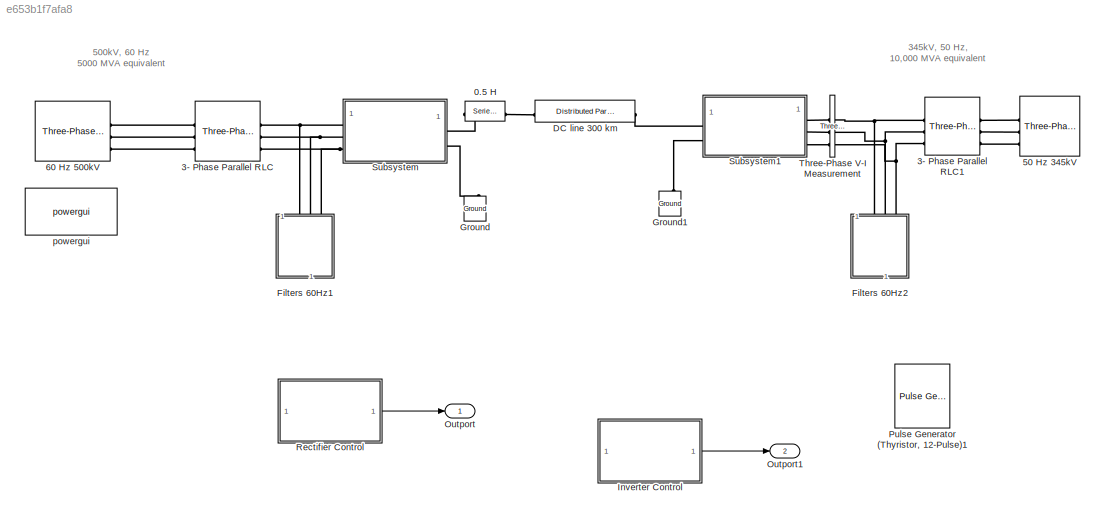
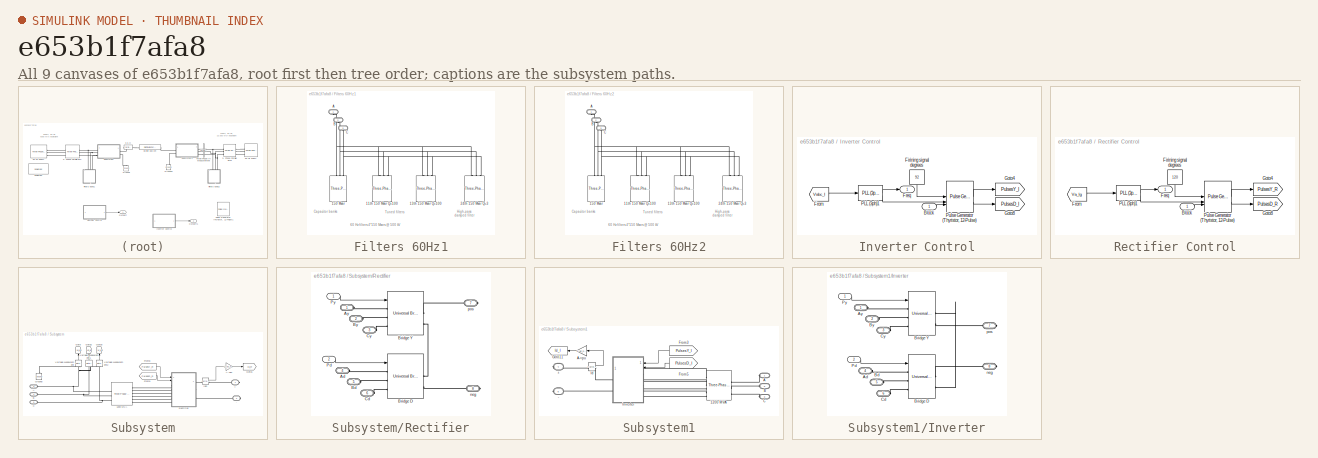
[diagram: thumbnail index - all 9 canvases of the model, root first then tree order]
MODEL slx_e653b1f7afa8
KIND model
CONFIG AbsTol = auto
CONFIG EnableMultiTasking = off
CONFIG FixedStep = auto
CONFIG MaxStep = auto
CONFIG MinStep = auto
CONFIG RelTol = 1e-3
CONFIG SampleTimeConstraint = Unconstrained
CONFIG SolverName = VariableStepAuto
CONFIG StartTime = 0.0
CONFIG StopTime = 10.0
BLOCK [Reference]  50 Hz 345kV    REF=spsThreePhaseSourceLib/Three-Phase Source
  SourceBlock = spsThreePhaseSourceLib/Three-Phase Source
  SourceType = Three-Phase Source
BLOCK [Reference]  60 Hz 500kV  REF=spsThreePhaseSourceLib/Three-Phase Source
  SourceBlock = spsThreePhaseSourceLib/Three-Phase Source
  SourceType = Three-Phase Source
BLOCK [Reference] 0.5 H  REF=spsSeriesRLCBranchLib/Series RLC Branch
  AttributesFormatString = \n
  SourceBlock = spsSeriesRLCBranchLib/Series RLC Branch
  SourceType = Series RLC Branch
BLOCK [Reference] 3- Phase Parallel RLC  REF=spsThreePhaseParallelRLCBranchLib/Three-Phase
Parallel RLC Branch
  AttributesFormatString = \n
  SourceBlock = spsThreePhaseParallelRLCBranchLib/Three-Phase\nParallel RLC Branch
  SourceType = Three-Phase Parallel RLC Branch
BLOCK [Reference] 3- Phase Parallel RLC1  REF=spsThreePhaseParallelRLCBranchLib/Three-Phase
Parallel RLC Branch
  AttributesFormatString = \n
  NameLocation = top
  SourceBlock = spsThreePhaseParallelRLCBranchLib/Three-Phase\nParallel RLC Branch
  SourceType = Three-Phase Parallel RLC Branch
BLOCK [Reference] DC line 300 km  REF=spsDistributedParametersLineLib/Distributed Parameters Line
  AttributesFormatString = \n
  NameLocation = top
  SourceBlock = spsDistributedParametersLineLib/Distributed Parameters Line
  SourceType = Distributed Parameters Line
BLOCK [SubSystem] Filters 60Hz1
  NameLocation = left
BLOCK [Reference] Filters 60Hz1/11th 150 Mvar Q=100  REF=spsThreePhaseHarmonicFilterLib/Three-Phase
Harmonic Filter
  AttributesFormatString = \n
  NameLocation = left
  SourceBlock = spsThreePhaseHarmonicFilterLib/Three-Phase\nHarmonic Filter
  SourceType = Three-Phase Harmonic Filter
BLOCK [Reference] Filters 60Hz1/13th 150 Mvar Q=100   REF=spsThreePhaseHarmonicFilterLib/Three-Phase
Harmonic Filter
  AttributesFormatString = \n
  NameLocation = left
  SourceBlock = spsThreePhaseHarmonicFilterLib/Three-Phase\nHarmonic Filter
  SourceType = Three-Phase Harmonic Filter
BLOCK [Reference] Filters 60Hz1/150 Mvar  REF=spsThreePhaseSeriesRLCLoadLib/Three-Phase
Series RLC Load
  AttributesFormatString = \n
  NameLocation = left
  SourceBlock = spsThreePhaseSeriesRLCLoadLib/Three-Phase\nSeries RLC Load
  SourceType = Three-Phase Series RLC Load
BLOCK [Reference] Filters 60Hz1/24th 150 Mvar Q=3  REF=spsThreePhaseHarmonicFilterLib/Three-Phase
Harmonic Filter
  AttributesFormatString = \n
  NameLocation = left
  SourceBlock = spsThreePhaseHarmonicFilterLib/Three-Phase\nHarmonic Filter
  SourceType = Three-Phase Harmonic Filter
BLOCK [PMIOPort] Filters 60Hz1/A
  NameLocation = left
  Side = Left
BLOCK [PMIOPort] Filters 60Hz1/B
  NameLocation = left
  Port = 2
  Side = Left
BLOCK [PMIOPort] Filters 60Hz1/C
  NameLocation = left
  Port = 3
  Side = Left
BLOCK [SubSystem] Filters 60Hz2
  NameLocation = left
BLOCK [Reference] Filters 60Hz2/11th 150 Mvar Q=100  REF=spsThreePhaseHarmonicFilterLib/Three-Phase
Harmonic Filter
  AttributesFormatString = \n
  NameLocation = left
  SourceBlock = spsThreePhaseHarmonicFilterLib/Three-Phase\nHarmonic Filter
  SourceType = Three-Phase Harmonic Filter
BLOCK [Reference] Filters 60Hz2/13th 150 Mvar Q=100   REF=spsThreePhaseHarmonicFilterLib/Three-Phase
Harmonic Filter
  AttributesFormatString = \n
  NameLocation = left
  SourceBlock = spsThreePhaseHarmonicFilterLib/Three-Phase\nHarmonic Filter
  SourceType = Three-Phase Harmonic Filter
BLOCK [Reference] Filters 60Hz2/150 Mvar  REF=spsThreePhaseSeriesRLCLoadLib/Three-Phase
Series RLC Load
  AttributesFormatString = \n
  NameLocation = left
  SourceBlock = spsThreePhaseSeriesRLCLoadLib/Three-Phase\nSeries RLC Load
  SourceType = Three-Phase Series RLC Load
BLOCK [Reference] Filters 60Hz2/24th 150 Mvar Q=3  REF=spsThreePhaseHarmonicFilterLib/Three-Phase
Harmonic Filter
  AttributesFormatString = \n
  NameLocation = left
  SourceBlock = spsThreePhaseHarmonicFilterLib/Three-Phase\nHarmonic Filter
  SourceType = Three-Phase Harmonic Filter
BLOCK [PMIOPort] Filters 60Hz2/A
  NameLocation = left
  Side = Left
BLOCK [PMIOPort] Filters 60Hz2/B
  NameLocation = left
  Port = 2
  Side = Left
BLOCK [PMIOPort] Filters 60Hz2/C
  NameLocation = left
  Port = 3
  Side = Left
BLOCK [Reference] Ground  REF=spsGroundLib/Ground
  LibrarySourceBlock = sps_lib/Utilities/Ground
  NameLocation = right
  SourceBlock = spsGroundLib/Ground
  SourceType = Ground
BLOCK [Reference] Ground1  REF=spsGroundLib/Ground
  LibrarySourceBlock = sps_lib/Utilities/Ground
  NameLocation = right
  SourceBlock = spsGroundLib/Ground
  SourceType = Ground
BLOCK [SubSystem] Inverter Control
BLOCK [Inport] Inverter Control/Block
BLOCK [Constant] Inverter Control/Firining signal degrees
  NameLocation = left
  Value = 92
BLOCK [Outport] Inverter Control/Freq
BLOCK [From] Inverter Control/From
  GotoTag = Vabc_I
  TagVisibility = global
BLOCK [Goto] Inverter Control/Goto4
  GotoTag = PulsesY_I
  NameLocation = top
  TagVisibility = global
BLOCK [Goto] Inverter Control/Goto8
  GotoTag = PulsesD_I
  NameLocation = top
  TagVisibility = global
BLOCK [Reference] Inverter Control/PLL (3ph)1  REF=spsPLL3phLib/PLL
(3ph)
  SourceBlock = spsPLL3phLib/PLL\n(3ph)
  SourceType = PLL (3ph)
BLOCK [Reference] Inverter Control/Pulse Generator (Thyristor, 12-Pulse)  REF=spsPulseGeneratorThyristor12PulseLib/Pulse Generator
(Thyristor, 12-Pulse)
  LibrarySourceBlock = sps_lib/Power Electronics/Power Electronics Control/Pulse Generator\n(Thyristor, 12-Pulse)
  SourceBlock = spsPulseGeneratorThyristor12PulseLib/Pulse Generator\n(Thyristor, 12-Pulse)
  SourceType = Pulse Generator (Thyristor)
BLOCK [Outport] Outport
BLOCK [Outport] Outport1
  Port = 2
BLOCK [Reference] Pulse Generator (Thyristor, 12-Pulse)1  REF=spsPulseGeneratorThyristor12PulseLib/Pulse Generator
(Thyristor, 12-Pulse)
  LibrarySourceBlock = sps_lib/Power Electronics/Power Electronics Control/Pulse Generator\n(Thyristor, 12-Pulse)
  SourceBlock = spsPulseGeneratorThyristor12PulseLib/Pulse Generator\n(Thyristor, 12-Pulse)
  SourceType = Pulse Generator (Thyristor)
BLOCK [SubSystem] Rectifier Control
BLOCK [Inport] Rectifier Control/Block
BLOCK [Constant] Rectifier Control/Firining signal degrees
  NameLocation = left
  Value = 120
BLOCK [Outport] Rectifier Control/Freq
BLOCK [From] Rectifier Control/From
  GotoTag = Va_lg
  TagVisibility = global
BLOCK [Goto] Rectifier Control/Goto4
  GotoTag = PulsesY_R
  NameLocation = top
  TagVisibility = global
BLOCK [Goto] Rectifier Control/Goto8
  GotoTag = PulsesD_R
  NameLocation = top
  TagVisibility = global
BLOCK [Reference] Rectifier Control/PLL (3ph)1  REF=spsPLL3phLib/PLL
(3ph)
  SourceBlock = spsPLL3phLib/PLL\n(3ph)
  SourceType = PLL (3ph)
BLOCK [Reference] Rectifier Control/Pulse Generator (Thyristor, 12-Pulse)  REF=spsPulseGeneratorThyristor12PulseLib/Pulse Generator
(Thyristor, 12-Pulse)
  LibrarySourceBlock = sps_lib/Power Electronics/Power Electronics Control/Pulse Generator\n(Thyristor, 12-Pulse)
  SourceBlock = spsPulseGeneratorThyristor12PulseLib/Pulse Generator\n(Thyristor, 12-Pulse)
  SourceType = Pulse Generator (Thyristor)
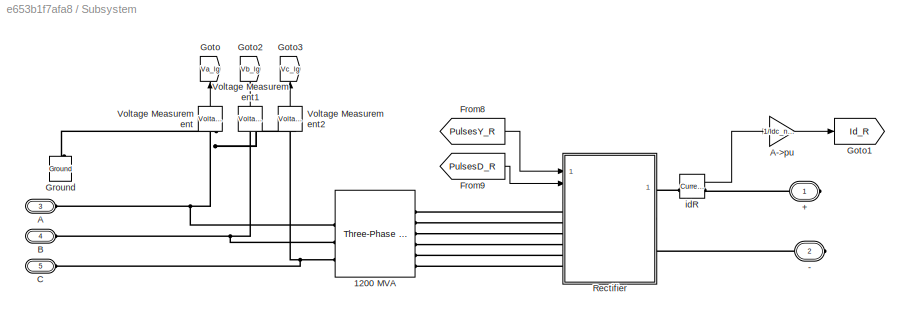
BLOCK [SubSystem] Subsystem
BLOCK [PMIOPort] Subsystem/+ 
  Side = Right
BLOCK [PMIOPort] Subsystem/-
  Port = 2
  Side = Right
BLOCK [Reference] Subsystem/1200 MVA  REF=spsThreePhaseTransformerThreeWindingsLib/Three-Phase
Transformer
(Three Windings)
  AttributesFormatString = \n
  SourceBlock = spsThreePhaseTransformerThreeWindingsLib/Three-Phase\nTransformer\n(Three Windings)
  SourceType = Three-Phase Transformer (Three Windings)
BLOCK [PMIOPort] Subsystem/A
  Port = 3
  Side = Left
BLOCK [Gain] Subsystem/A->pu
  Gain = 1/Idc_nom
  OutDataTypeStr = Inherit: Same as input
  ParamDataTypeStr = Inherit: Same as input
  SaturateOnIntegerOverflow = on
BLOCK [PMIOPort] Subsystem/B
  Port = 4
  Side = Left
BLOCK [PMIOPort] Subsystem/C
  Port = 5
  Side = Left
BLOCK [From] Subsystem/From8
  CloseFcn = tagdialog Close
  GotoTag = PulsesY_R
  NameLocation = top
  TagVisibility = global
BLOCK [From] Subsystem/From9
  CloseFcn = tagdialog Close
  GotoTag = PulsesD_R
  NameLocation = top
  TagVisibility = global
BLOCK [Goto] Subsystem/Goto
  GotoTag = Va_lg
  NameLocation = right
  TagVisibility = global
BLOCK [Goto] Subsystem/Goto1
  GotoTag = Id_R
  NameLocation = top
  TagVisibility = global
BLOCK [Goto] Subsystem/Goto2
  GotoTag = Vb_lg
  NameLocation = right
BLOCK [Goto] Subsystem/Goto3
  GotoTag = Vc_lg
  NameLocation = right
BLOCK [Reference] Subsystem/Ground  REF=spsGroundLib/Ground
  LibrarySourceBlock = sps_lib/Utilities/Ground
  NameLocation = right
  SourceBlock = spsGroundLib/Ground
  SourceType = Ground
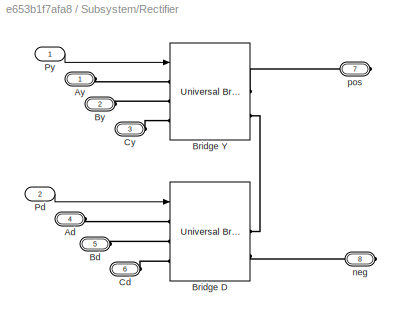
BLOCK [SubSystem] Subsystem/Rectifier
BLOCK [PMIOPort] Subsystem/Rectifier/Ad
  Port = 4
  Side = Left
BLOCK [PMIOPort] Subsystem/Rectifier/Ay
  Side = Left
BLOCK [PMIOPort] Subsystem/Rectifier/Bd
  Port = 5
  Side = Left
BLOCK [Reference] Subsystem/Rectifier/Bridge D  REF=spsUniversalBridgeLib/Universal Bridge
  AttributesFormatString = \n
  SourceBlock = spsUniversalBridgeLib/Universal Bridge
  SourceType = Universal Bridge
BLOCK [Reference] Subsystem/Rectifier/Bridge Y  REF=spsUniversalBridgeLib/Universal Bridge
  AttributesFormatString = \n
  SourceBlock = spsUniversalBridgeLib/Universal Bridge
  SourceType = Universal Bridge
BLOCK [PMIOPort] Subsystem/Rectifier/By
  Port = 2
  Side = Left
BLOCK [PMIOPort] Subsystem/Rectifier/Cd
  Port = 6
  Side = Left
BLOCK [PMIOPort] Subsystem/Rectifier/Cy
  Port = 3
  Side = Left
BLOCK [Inport] Subsystem/Rectifier/Pd
  Port = 2
BLOCK [Inport] Subsystem/Rectifier/Py
BLOCK [PMIOPort] Subsystem/Rectifier/neg
  Port = 8
  Side = Right
BLOCK [PMIOPort] Subsystem/Rectifier/pos
  Port = 7
  Side = Right
BLOCK [Reference] Subsystem/Voltage Measurement  REF=spsVoltageMeasurementLib/Voltage Measurement
  LibrarySourceBlock = sps_lib/Sensors and Measurements/Voltage Measurement
  NameLocation = right
  SourceBlock = spsVoltageMeasurementLib/Voltage Measurement
  SourceType = Voltage Measurement
  UserDataPersistent = on
BLOCK [Reference] Subsystem/Voltage Measurement1  REF=spsVoltageMeasurementLib/Voltage Measurement
  LibrarySourceBlock = sps_lib/Sensors and Measurements/Voltage Measurement
  NameLocation = right
  SourceBlock = spsVoltageMeasurementLib/Voltage Measurement
  SourceType = Voltage Measurement
  UserDataPersistent = on
BLOCK [Reference] Subsystem/Voltage Measurement2  REF=spsVoltageMeasurementLib/Voltage Measurement
  LibrarySourceBlock = sps_lib/Sensors and Measurements/Voltage Measurement
  NameLocation = right
  SourceBlock = spsVoltageMeasurementLib/Voltage Measurement
  SourceType = Voltage Measurement
  UserDataPersistent = on
BLOCK [Reference] Subsystem/idR  REF=spsCurrentMeasurementLib/Current Measurement
  AttributesFormatString = \n
  SourceBlock = spsCurrentMeasurementLib/Current Measurement
  SourceType = Current Measurement
  Tag = PoWeRsYsTeMmEaSuReMeNt
BLOCK [SubSystem] Subsystem1
BLOCK [PMIOPort] Subsystem1/+
  Port = 4
  Side = Right
BLOCK [PMIOPort] Subsystem1/-
  Port = 5
  Side = Right
BLOCK [Reference] Subsystem1/1200 MVA  REF=spsThreePhaseTransformerThreeWindingsLib/Three-Phase
Transformer
(Three Windings)
  AttributesFormatString = \n
  SourceBlock = spsThreePhaseTransformerThreeWindingsLib/Three-Phase\nTransformer\n(Three Windings)
  SourceType = Three-Phase Transformer (Three Windings)
BLOCK [PMIOPort] Subsystem1/A
  Side = Left
BLOCK [Gain] Subsystem1/A->pu
  Gain = 1/Idc_nom
  OutDataTypeStr = Inherit: Same as input
  ParamDataTypeStr = Inherit: Same as input
  SaturateOnIntegerOverflow = on
BLOCK [PMIOPort] Subsystem1/B
  Port = 2
  Side = Left
BLOCK [PMIOPort] Subsystem1/C
  Port = 3
  Side = Left
BLOCK [From] Subsystem1/From3
  CloseFcn = tagdialog Close
  GotoTag = PulsesY_I
  NameLocation = top
BLOCK [From] Subsystem1/From5
  CloseFcn = tagdialog Close
  GotoTag = PulsesD_I
  NameLocation = top
BLOCK [Goto] Subsystem1/Goto11
  GotoTag = Id_I
  TagVisibility = global
BLOCK [Reference] Subsystem1/Id  REF=spsCurrentMeasurementLib/Current Measurement
  AttributesFormatString = \n
  SourceBlock = spsCurrentMeasurementLib/Current Measurement
  SourceType = Current Measurement
  Tag = PoWeRsYsTeMmEaSuReMeNt
BLOCK [SubSystem] Subsystem1/Inverter
BLOCK [PMIOPort] Subsystem1/Inverter/Ad
  Port = 4
  Side = Left
BLOCK [PMIOPort] Subsystem1/Inverter/Ay
  Side = Left
BLOCK [PMIOPort] Subsystem1/Inverter/Bd
  Port = 5
  Side = Left
BLOCK [Reference] Subsystem1/Inverter/Bridge D  REF=spsUniversalBridgeLib/Universal Bridge
  AttributesFormatString = \n
  SourceBlock = spsUniversalBridgeLib/Universal Bridge
  SourceType = Universal Bridge
BLOCK [Reference] Subsystem1/Inverter/Bridge Y  REF=spsUniversalBridgeLib/Universal Bridge
  AttributesFormatString = \n
  SourceBlock = spsUniversalBridgeLib/Universal Bridge
  SourceType = Universal Bridge
BLOCK [PMIOPort] Subsystem1/Inverter/By
  Port = 2
  Side = Left
BLOCK [PMIOPort] Subsystem1/Inverter/Cd
  Port = 6
  Side = Left
BLOCK [PMIOPort] Subsystem1/Inverter/Cy
  Port = 3
  Side = Left
BLOCK [Inport] Subsystem1/Inverter/Pd
  Port = 2
BLOCK [Inport] Subsystem1/Inverter/Py
BLOCK [PMIOPort] Subsystem1/Inverter/neg
  Port = 8
  Side = Right
BLOCK [PMIOPort] Subsystem1/Inverter/pos
  Port = 7
  Side = Right
BLOCK [Reference] Three-Phase V-I Measurement  REF=spsThreePhaseVIMeasurementLib/Three-Phase
V-I Measurement
  LibrarySourceBlock = sps_lib/Sensors and Measurements/Three-Phase\nV-I Measurement
  SourceBlock = spsThreePhaseVIMeasurementLib/Three-Phase\nV-I Measurement
  SourceType = Three-Phase VI Measurement
BLOCK [Reference] powergui  REF=spspowerguiLib/powergui
  Priority = 2
  SourceBlock = spspowerguiLib/powergui
  SourceType = PSB option menu block
ANNOTATION (root): 345kV, 50 Hz, 10,000 MVA equivalent
ANNOTATION (root): 500kV, 60 Hz 5000 MVA equivalent
ANNOTATION Filters 60Hz1: 60 Hz filters 4*150 Mvars @ 500 kV
ANNOTATION Filters 60Hz1: Capacitor banks
ANNOTATION Filters 60Hz1: High-pass damped filter
ANNOTATION Filters 60Hz1: Tuned filters
ANNOTATION Filters 60Hz2: 60 Hz filters 4*150 Mvars @ 500 kV
ANNOTATION Filters 60Hz2: Capacitor banks
ANNOTATION Filters 60Hz2: High-pass damped filter
ANNOTATION Filters 60Hz2: Tuned filters
LINE Inverter Control/Block:1 -> Inverter Control/Pulse Generator (Thyristor, 12-Pulse):3
LINE Inverter Control/Firining signal degrees:1 -> Inverter Control/Pulse Generator (Thyristor, 12-Pulse):1
LINE Inverter Control/From:1 -> Inverter Control/PLL (3ph)1:1
LINE Inverter Control/PLL (3ph)1:1 -> Inverter Control/Freq:1
LINE Inverter Control/PLL (3ph)1:2 -> Inverter Control/Pulse Generator (Thyristor, 12-Pulse):2
LINE Inverter Control/Pulse Generator (Thyristor, 12-Pulse):1 -> Inverter Control/Goto4:1
LINE Inverter Control/Pulse Generator (Thyristor, 12-Pulse):2 -> Inverter Control/Goto8:1
LINE Inverter Control:1 -> Outport1:1
LINE Rectifier Control/Block:1 -> Rectifier Control/Pulse Generator (Thyristor, 12-Pulse):3
LINE Rectifier Control/Firining signal degrees:1 -> Rectifier Control/Pulse Generator (Thyristor, 12-Pulse):1
LINE Rectifier Control/From:1 -> Rectifier Control/PLL (3ph)1:1
LINE Rectifier Control/PLL (3ph)1:1 -> Rectifier Control/Freq:1
LINE Rectifier Control/PLL (3ph)1:2 -> Rectifier Control/Pulse Generator (Thyristor, 12-Pulse):2
LINE Rectifier Control/Pulse Generator (Thyristor, 12-Pulse):1 -> Rectifier Control/Goto4:1
LINE Rectifier Control/Pulse Generator (Thyristor, 12-Pulse):2 -> Rectifier Control/Goto8:1
LINE Rectifier Control:1 -> Outport:1
LINE Subsystem/A->pu:1 -> Subsystem/Goto1:1
LINE Subsystem/From8:1 -> Subsystem/Rectifier:1
LINE Subsystem/From9:1 -> Subsystem/Rectifier:2
LINE Subsystem/Rectifier/Pd:1 -> Subsystem/Rectifier/Bridge D:1
LINE Subsystem/Rectifier/Py:1 -> Subsystem/Rectifier/Bridge Y:1
LINE Subsystem/Voltage Measurement1:1 -> Subsystem/Goto2:1
LINE Subsystem/Voltage Measurement2:1 -> Subsystem/Goto3:1
LINE Subsystem/Voltage Measurement:1 -> Subsystem/Goto:1
LINE Subsystem/idR:1 -> Subsystem/A->pu:1
LINE Subsystem1/A->pu:1 -> Subsystem1/Goto11:1
LINE Subsystem1/From3:1 -> Subsystem1/Inverter:1
LINE Subsystem1/From5:1 -> Subsystem1/Inverter:2
LINE Subsystem1/Id:1 -> Subsystem1/A->pu:1
LINE Subsystem1/Inverter/Pd:1 -> Subsystem1/Inverter/Bridge D:1
LINE Subsystem1/Inverter/Py:1 -> Subsystem1/Inverter/Bridge Y:1
PLINE  50 Hz 345kV  :RConn1 -- 3- Phase Parallel RLC1:LConn1
PLINE  50 Hz 345kV  :RConn2 -- 3- Phase Parallel RLC1:LConn2
PLINE  50 Hz 345kV  :RConn3 -- 3- Phase Parallel RLC1:LConn3
PLINE  60 Hz 500kV:RConn1 -- 3- Phase Parallel RLC:LConn1
PLINE  60 Hz 500kV:RConn2 -- 3- Phase Parallel RLC:LConn2
PLINE  60 Hz 500kV:RConn3 -- 3- Phase Parallel RLC:LConn3
PLINE 0.5 H:LConn1 -- Subsystem:RConn1
PLINE 0.5 H:RConn1 -- DC line 300 km:LConn1
PNET net1: 3- Phase Parallel RLC1:RConn1 -- Filters 60Hz2:LConn1 -- Three-Phase V-I Measurement:RConn1
PNET net2: 3- Phase Parallel RLC1:RConn2 -- Filters 60Hz2:LConn2 -- Three-Phase V-I Measurement:RConn2
PNET net3: 3- Phase Parallel RLC1:RConn3 -- Filters 60Hz2:LConn3 -- Three-Phase V-I Measurement:RConn3
PNET net4: 3- Phase Parallel RLC:RConn1 -- Filters 60Hz1:LConn1 -- Subsystem:LConn1
PNET net5: 3- Phase Parallel RLC:RConn2 -- Filters 60Hz1:LConn2 -- Subsystem:LConn2
PNET net6: 3- Phase Parallel RLC:RConn3 -- Filters 60Hz1:LConn3 -- Subsystem:LConn3
PLINE DC line 300 km:RConn1 -- Subsystem1:RConn1
PNET net7: Filters 60Hz1/11th 150 Mvar Q=100:LConn1 -- Filters 60Hz1/13th 150 Mvar Q=100 :LConn1 -- Filters 60Hz1/150 Mvar:LConn1 -- Filters 60Hz1/24th 150 Mvar Q=3:LConn1 -- Filters 60Hz1/A:RConn1
PNET net8: Filters 60Hz1/11th 150 Mvar Q=100:LConn2 -- Filters 60Hz1/13th 150 Mvar Q=100 :LConn2 -- Filters 60Hz1/150 Mvar:LConn2 -- Filters 60Hz1/24th 150 Mvar Q=3:LConn2 -- Filters 60Hz1/B:RConn1
PNET net9: Filters 60Hz1/11th 150 Mvar Q=100:LConn3 -- Filters 60Hz1/13th 150 Mvar Q=100 :LConn3 -- Filters 60Hz1/150 Mvar:LConn3 -- Filters 60Hz1/24th 150 Mvar Q=3:LConn3 -- Filters 60Hz1/C:RConn1
PNET net10: Filters 60Hz2/11th 150 Mvar Q=100:LConn1 -- Filters 60Hz2/13th 150 Mvar Q=100 :LConn1 -- Filters 60Hz2/150 Mvar:LConn1 -- Filters 60Hz2/24th 150 Mvar Q=3:LConn1 -- Filters 60Hz2/A:RConn1
PNET net11: Filters 60Hz2/11th 150 Mvar Q=100:LConn2 -- Filters 60Hz2/13th 150 Mvar Q=100 :LConn2 -- Filters 60Hz2/150 Mvar:LConn2 -- Filters 60Hz2/24th 150 Mvar Q=3:LConn2 -- Filters 60Hz2/B:RConn1
PNET net12: Filters 60Hz2/11th 150 Mvar Q=100:LConn3 -- Filters 60Hz2/13th 150 Mvar Q=100 :LConn3 -- Filters 60Hz2/150 Mvar:LConn3 -- Filters 60Hz2/24th 150 Mvar Q=3:LConn3 -- Filters 60Hz2/C:RConn1
PLINE Ground1:LConn1 -- Subsystem1:RConn2
PLINE Ground:LConn1 -- Subsystem:RConn2
PLINE Subsystem/+ :RConn1 -- Subsystem/idR:RConn1
PLINE Subsystem/-:RConn1 -- Subsystem/Rectifier:RConn2
PNET net13: Subsystem/1200 MVA:LConn1 -- Subsystem/A:RConn1 -- Subsystem/Voltage Measurement:LConn1
PNET net14: Subsystem/1200 MVA:LConn2 -- Subsystem/B:RConn1 -- Subsystem/Voltage Measurement1:LConn1
PNET net15: Subsystem/1200 MVA:LConn3 -- Subsystem/C:RConn1 -- Subsystem/Voltage Measurement2:LConn1
PLINE Subsystem/1200 MVA:RConn1 -- Subsystem/Rectifier:LConn1
PLINE Subsystem/1200 MVA:RConn2 -- Subsystem/Rectifier:LConn2
PLINE Subsystem/1200 MVA:RConn3 -- Subsystem/Rectifier:LConn3
PLINE Subsystem/1200 MVA:RConn4 -- Subsystem/Rectifier:LConn4
PLINE Subsystem/1200 MVA:RConn5 -- Subsystem/Rectifier:LConn5
PLINE Subsystem/1200 MVA:RConn6 -- Subsystem/Rectifier:LConn6
PNET net16: Subsystem/Ground:LConn1 -- Subsystem/Voltage Measurement1:LConn2 -- Subsystem/Voltage Measurement2:LConn2 -- Subsystem/Voltage Measurement:LConn2
PLINE Subsystem/Rectifier/Ad:RConn1 -- Subsystem/Rectifier/Bridge D:LConn1
PLINE Subsystem/Rectifier/Ay:RConn1 -- Subsystem/Rectifier/Bridge Y:LConn1
PLINE Subsystem/Rectifier/Bd:RConn1 -- Subsystem/Rectifier/Bridge D:LConn2
PLINE Subsystem/Rectifier/Bridge D:LConn3 -- Subsystem/Rectifier/Cd:RConn1
PLINE Subsystem/Rectifier/Bridge D:RConn1 -- Subsystem/Rectifier/Bridge Y:RConn2
PLINE Subsystem/Rectifier/Bridge D:RConn2 -- Subsystem/Rectifier/neg:RConn1
PLINE Subsystem/Rectifier/Bridge Y:LConn2 -- Subsystem/Rectifier/By:RConn1
PLINE Subsystem/Rectifier/Bridge Y:LConn3 -- Subsystem/Rectifier/Cy:RConn1
PLINE Subsystem/Rectifier/Bridge Y:RConn1 -- Subsystem/Rectifier/pos:RConn1
PLINE Subsystem/Rectifier:RConn1 -- Subsystem/idR:LConn1
PLINE Subsystem1/+:RConn1 -- Subsystem1/Id:LConn1
PLINE Subsystem1/-:RConn1 -- Subsystem1/Inverter:RConn2
PLINE Subsystem1/1200 MVA:LConn1 -- Subsystem1/A:RConn1
PLINE Subsystem1/1200 MVA:LConn2 -- Subsystem1/B:RConn1
PLINE Subsystem1/1200 MVA:LConn3 -- Subsystem1/C:RConn1
PLINE Subsystem1/1200 MVA:RConn1 -- Subsystem1/Inverter:LConn1
PLINE Subsystem1/1200 MVA:RConn2 -- Subsystem1/Inverter:LConn2
PLINE Subsystem1/1200 MVA:RConn3 -- Subsystem1/Inverter:LConn3
PLINE Subsystem1/1200 MVA:RConn4 -- Subsystem1/Inverter:LConn4
PLINE Subsystem1/1200 MVA:RConn5 -- Subsystem1/Inverter:LConn5
PLINE Subsystem1/1200 MVA:RConn6 -- Subsystem1/Inverter:LConn6
PLINE Subsystem1/Id:RConn1 -- Subsystem1/Inverter:RConn1
PLINE Subsystem1/Inverter/Ad:RConn1 -- Subsystem1/Inverter/Bridge D:LConn1
PLINE Subsystem1/Inverter/Ay:RConn1 -- Subsystem1/Inverter/Bridge Y:LConn1
PLINE Subsystem1/Inverter/Bd:RConn1 -- Subsystem1/Inverter/Bridge D:LConn2
PLINE Subsystem1/Inverter/Bridge D:LConn3 -- Subsystem1/Inverter/Cd:RConn1
PLINE Subsystem1/Inverter/Bridge D:RConn1 -- Subsystem1/Inverter/neg:RConn1
PLINE Subsystem1/Inverter/Bridge D:RConn2 -- Subsystem1/Inverter/Bridge Y:RConn1
PLINE Subsystem1/Inverter/Bridge Y:LConn2 -- Subsystem1/Inverter/By:RConn1
PLINE Subsystem1/Inverter/Bridge Y:LConn3 -- Subsystem1/Inverter/Cy:RConn1
PLINE Subsystem1/Inverter/Bridge Y:RConn2 -- Subsystem1/Inverter/pos:RConn1
PLINE Subsystem1:LConn1 -- Three-Phase V-I Measurement:LConn1
PLINE Subsystem1:LConn2 -- Three-Phase V-I Measurement:LConn2
PLINE Subsystem1:LConn3 -- Three-Phase V-I Measurement:LConn3
note: PNET lines group multi-terminal physical nets as a canonical sorted terminal list (undirected conserving connections); 2-terminal nets keep the pairwise PLINE form
